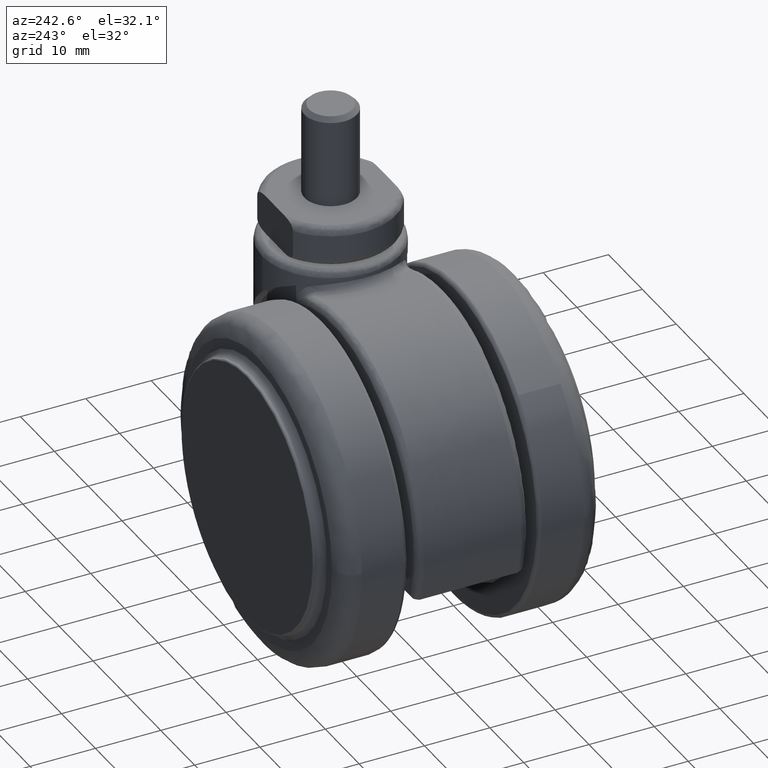
[diagram: clean part render]
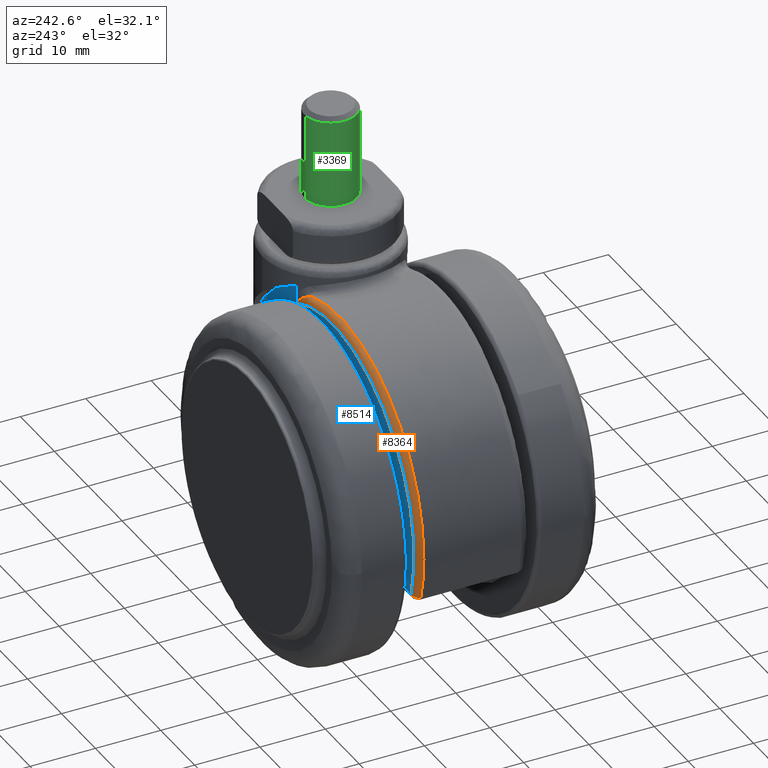
[diagram: same view with three faces highlighted in distinct colors, each labeled with its STEP entity id]
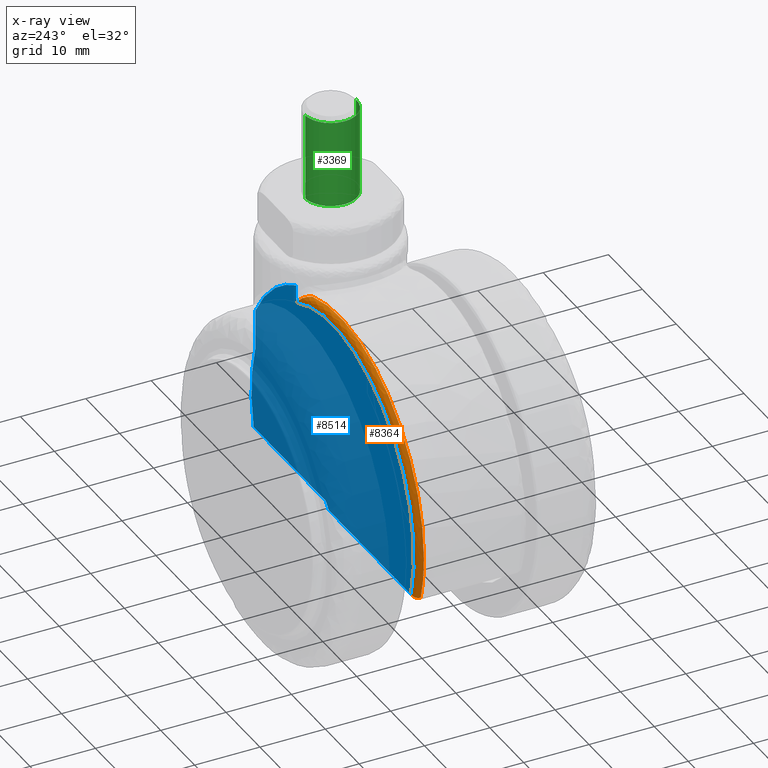
[diagram: x-ray of the same camera — body ghosted, the three highlighted faces saturated]
A machine part, auxiliary view with three faces highlighted in distinct colors.
The next image is the same camera in x-ray (body ghosted, the three faces saturated) — at least one of them is partly hidden behind the body in this view.
Their STEP definitions:

[orange] entity #8364 — the highlighted face is a freeform B-spline surface patch.
#7219=CARTESIAN_POINT('',(7.963655877806359,7.500000000000000,23.697683115863452));
#7220=VERTEX_POINT('',#7219);
#7267=CARTESIAN_POINT('',(-24.065656358641501,7.500000000000000,-6.770833333333330));
#7268=VERTEX_POINT('',#7267);
#7269=CARTESIAN_POINT('',(7.963655877806359,7.500000000000000,23.697683115863452));
#7270=CARTESIAN_POINT('',(6.859242769091625,7.499999999999993,24.068882905168969));
#7271=CARTESIAN_POINT('',(4.872437707987634,7.500000000000003,24.585161753016191));
#7272=CARTESIAN_POINT('',(1.367299601235439,7.499999999999980,25.048626256332479));
#7273=CARTESIAN_POINT('',(-2.354405640508272,7.500000000000038,25.009508996484090));
#7274=CARTESIAN_POINT('',(-6.118109439583619,7.499999999999904,24.324602599033572));
#7275=CARTESIAN_POINT('',(-9.442108607412099,7.499999999999992,23.223760472612579));
#7276=CARTESIAN_POINT('',(-12.024767901229600,7.500000000000158,21.979301664059150));
#7277=CARTESIAN_POINT('',(-14.447992627646750,7.499999999999566,20.455642199232990));
#7278=CARTESIAN_POINT('',(-16.455091405301140,7.500000000000608,18.888313290922980));
#7279=CARTESIAN_POINT('',(-18.302146878638649,7.499999999999987,17.085964446447921));
#7280=CARTESIAN_POINT('',(-20.037281652684410,7.500000000000112,15.035680725385170));
#7281=CARTESIAN_POINT('',(-21.814796271802731,7.499999999999541,12.393459194769489));
#7282=CARTESIAN_POINT('',(-23.235792128757979,7.500000000001567,9.421515627447958));
#7283=CARTESIAN_POINT('',(-24.198545514101578,7.499999999998988,6.463192589803484));
#7284=CARTESIAN_POINT('',(-24.704152926280820,7.500000000000552,4.076285190569061));
#7285=CARTESIAN_POINT('',(-25.008072640344579,7.499999999999718,1.408036718158076));
#7286=CARTESIAN_POINT('',(-25.034931267070849,7.500000000000443,-2.165553450499177));
#7287=CARTESIAN_POINT('',(-24.553653521361991,7.499999999999515,-5.037551449353529));
#7288=CARTESIAN_POINT('',(-24.065656358641501,7.500000000000000,-6.770833333333330));
#7289=B_SPLINE_CURVE_WITH_KNOTS('',3,(#7269,#7270,#7271,#7272,#7273,#7274,#7275,#7276,#7277,#7278,#7279,#7280,#7281,#7282,#7283,#7284,#7285,#7286,#7287,#7288),.UNSPECIFIED.,.F.,.U.,(4,1,1,1,1,1,1,1,1,1,1,1,1,1,1,1,1,4),(0.000000060380067,3.495371502218006,6.143365577067421,10.592041759199381,14.617031205495501,17.582805502857681,21.078185570483441,23.196615124435130,26.162405244347550,28.704452550518582,30.928756215938112,34.212302534804010,38.237300180954918,40.779396035458483,43.533338399942657,45.545835560267733,48.829381716570850,54.231299920687853),.UNSPECIFIED.);
#7290=EDGE_CURVE('',#7220,#7268,#7289,.T.);
#7949=CARTESIAN_POINT('',(10.519259301592101,8.500000000000000,21.571860924497649));
#7950=VERTEX_POINT('',#7949);
#7972=CARTESIAN_POINT('',(7.963655877806359,7.500000000000000,23.697683115863452));
#7973=CARTESIAN_POINT('',(8.086906256512208,7.574496717780426,23.656264568825581));
#7974=CARTESIAN_POINT('',(8.208791802757018,7.642910021772530,23.605681372133130));
#7975=CARTESIAN_POINT('',(8.450701271172521,7.770864844611372,23.491411037727499));
#7976=CARTESIAN_POINT('',(8.570706536315749,7.830360379961364,23.427637698386409));
#7977=CARTESIAN_POINT('',(8.809030799673582,7.942105333175284,23.289051811595499));
#7978=CARTESIAN_POINT('',(8.927564415652485,7.994416425119940,23.214035388209840));
#7979=CARTESIAN_POINT('',(9.159954255707605,8.091601835681145,23.055714736592911));
#7980=CARTESIAN_POINT('',(9.274171022358837,8.136650606389317,22.972219823947761));
#7981=CARTESIAN_POINT('',(9.498376817115380,8.220443839604647,22.796597556960641));
#7982=CARTESIAN_POINT('',(9.608377941127918,8.259191238348720,22.704487390952629));
#7983=CARTESIAN_POINT('',(9.769481788549019,8.312699300023898,22.558959745821511));
#7984=CARTESIAN_POINT('',(9.822578599136262,8.329776013754687,22.509156793952389));
#7985=CARTESIAN_POINT('',(9.926571541227562,8.362123109384484,22.407377202655422));
#7986=CARTESIAN_POINT('',(9.977541636133163,8.377419636549488,22.355342983534971));
#7987=CARTESIAN_POINT('',(10.077013693826011,8.406129440420878,22.248579802454280));
#7988=CARTESIAN_POINT('',(10.125522433692050,8.419546277959581,22.193857831344491));
#7989=CARTESIAN_POINT('',(10.219367141180820,8.444209167654375,22.081013257189401));
#7990=CARTESIAN_POINT('',(10.264727753480280,8.455466721574995,22.022902032924151));
#7991=CARTESIAN_POINT('',(10.350913534925059,8.475175524779735,21.901948637990500));
#7992=CARTESIAN_POINT('',(10.391264996273680,8.483529567917616,21.839853133406098));
#7993=CARTESIAN_POINT('',(10.445392363569290,8.492788830229522,21.742951329182610));
#7994=CARTESIAN_POINT('',(10.462354310086800,8.495323220637980,21.710016188652851));
#7995=CARTESIAN_POINT('',(10.493342726240650,8.498923811404289,21.642424827868680));
#7996=CARTESIAN_POINT('',(10.507388989945881,8.500000000003656,21.607780220787578));
#7997=CARTESIAN_POINT('',(10.519259301597559,8.500000000003832,21.571860924502150));
#7998=B_SPLINE_CURVE_WITH_KNOTS('',3,(#7972,#7973,#7974,#7975,#7976,#7977,#7978,#7979,#7980,#7981,#7982,#7983,#7984,#7985,#7986,#7987,#7988,#7989,#7990,#7991,#7992,#7993,#7994,#7995,#7996,#7997),.UNSPECIFIED.,.F.,.U.,(4,2,2,2,2,2,2,2,2,2,2,2,4),(0.0,0.125000000000001,0.250000000000002,0.375000000000002,0.500000000000003,0.625000000000004,0.687500000000003,0.750000000000002,0.812500000000002,0.875000000000001,0.937500000000000,0.968750000000000,1.0),.UNSPECIFIED.);
#7999=EDGE_CURVE('',#7220,#7950,#7998,.T.);
#8225=CARTESIAN_POINT('',(-23.103030104295851,8.500000000000000,-6.500000000000000));
#8226=VERTEX_POINT('',#8225);
#8293=CARTESIAN_POINT('',(-24.065656358641512,7.500000000000000,-6.770833333333333));
#8294=CARTESIAN_POINT('',(-24.065656358641512,8.500000000000002,-6.770833333333332));
#8295=CARTESIAN_POINT('',(-23.103030104295851,8.500000000000000,-6.500000000000000));
#8303=(BOUNDED_CURVE()B_SPLINE_CURVE(2,(#8293,#8294,#8295),.UNSPECIFIED.,.F.,.U.)CURVE()GEOMETRIC_REPRESENTATION_ITEM()QUASI_UNIFORM_CURVE()RATIONAL_B_SPLINE_CURVE((1.0,0.707106781186548,1.0))REPRESENTATION_ITEM(''));
#8304=EDGE_CURVE('',#7268,#8226,#8303,.T.);
#8310=CARTESIAN_POINT('',(-23.172909828756957,7.430275732217766,-9.375210455294747));
#8311=CARTESIAN_POINT('',(-30.037930730431039,7.430275732217766,7.593209729575003));
#8312=CARTESIAN_POINT('',(-15.934048446099247,7.430275732217767,19.260955872700897));
#8313=CARTESIAN_POINT('',(-1.959630593221735,7.430275732217766,30.821599723683370));
#8314=CARTESIAN_POINT('',(13.366389932106099,7.430275732217767,21.123871359096601));
#8315=CARTESIAN_POINT('',(-23.247230763028124,8.577335706274869,-9.405278944974089));
#8316=CARTESIAN_POINT('',(-30.134269390183107,8.577335706274871,7.617562926708606));
#8317=CARTESIAN_POINT('',(-15.985152661149812,8.577335706274873,19.322730256927713));
#8318=CARTESIAN_POINT('',(-1.965915586241207,8.577335706274871,30.920451792936824));
#8319=CARTESIAN_POINT('',(13.409259066579409,8.577335706274871,21.191620548405737));
#8320=CARTESIAN_POINT('',(-22.183870791062201,8.497592349468413,-8.975068686504720));
#8321=CARTESIAN_POINT('',(-28.755886898926569,8.497592349468413,7.269125231795028));
#8322=CARTESIAN_POINT('',(-15.253970024434889,8.497592349468413,18.438882278914374));
#8323=CARTESIAN_POINT('',(-1.875991931936650,8.497592349468413,29.506108248672525));
#8324=CARTESIAN_POINT('',(12.795901308381440,8.497592349468413,20.222286985110820));
#8332=(BOUNDED_SURFACE()B_SPLINE_SURFACE(2,2,((#8310,#8315,#8320),(#8311,#8316,#8321),(#8312,#8317,#8322),(#8313,#8318,#8323),(#8314,#8319,#8324)),.UNSPECIFIED.,.F.,.F.,.U.)B_SPLINE_SURFACE_WITH_KNOTS((3,2,3),(3,3),(0.0,32.693040188240168,65.146985366796685),(0.0,1.822370444831694),.UNSPECIFIED.)GEOMETRIC_REPRESENTATION_ITEM()RATIONAL_B_SPLINE_SURFACE(((0.887717816215956,0.584162505026285,0.892662383280288),(0.726679145541502,0.478191044784231,0.730726731050935),(0.913811094967896,0.601333181114613,0.918901000972554),(0.728047703344710,0.479091623932235,0.732102911688468),(0.885380979992293,0.582624750486143,0.890312530934592)))REPRESENTATION_ITEM('')SURFACE());
#8333=ORIENTED_EDGE('',*,*,#7290,.F.);
#8334=ORIENTED_EDGE('',*,*,#7999,.T.);
#8335=CARTESIAN_POINT('',(-23.103030104295851,8.500000000000000,-6.500000000000000));
#8336=CARTESIAN_POINT('',(-23.346244557570770,8.499999999999989,-5.635610764137390));
#8337=CARTESIAN_POINT('',(-23.735484791490009,8.500000000000020,-3.879493497493383));
#8338=CARTESIAN_POINT('',(-24.005457262742389,8.499999999999975,-1.339599236770618));
#8339=CARTESIAN_POINT('',(-24.011969827971519,8.500000000000032,1.141504496919915));
#8340=CARTESIAN_POINT('',(-23.790989273043781,8.499999999999909,3.432703993917839));
#8341=CARTESIAN_POINT('',(-23.295305989846231,8.500000000000046,5.973533331593217));
#8342=CARTESIAN_POINT('',(-22.426274491585119,8.500000000000014,8.756552783996602));
#8343=CARTESIAN_POINT('',(-21.138895233915481,8.499999999999954,11.493854406330341));
#8344=CARTESIAN_POINT('',(-19.718133782241448,8.500000000000048,13.744420474461529));
#8345=CARTESIAN_POINT('',(-18.092583601994480,8.499999999999952,15.850409708342051));
#8346=CARTESIAN_POINT('',(-16.033051550238859,8.500000000000073,17.966521359326499));
#8347=CARTESIAN_POINT('',(-13.297168220413701,8.499999999999707,20.078935389592420));
#8348=CARTESIAN_POINT('',(-10.693827732398770,8.500000000000982,21.548279440125182));
#8349=CARTESIAN_POINT('',(-8.207294529475309,8.499999999998352,22.591013063935520));
#8350=CARTESIAN_POINT('',(-5.495271710868497,8.500000000003361,23.438439346925001));
#8351=CARTESIAN_POINT('',(-2.759158713449573,8.499999999998398,23.902836987235609));
#8352=CARTESIAN_POINT('',(0.077343010024141,8.499999999999712,24.035873104368129));
#8353=CARTESIAN_POINT('',(2.664624706985277,8.500000000000618,23.913244976623439));
#8354=CARTESIAN_POINT('',(5.076955345491345,8.499999999999824,23.497009272345998));
#8355=CARTESIAN_POINT('',(7.780173271806509,8.500000000000012,22.756478069076390));
#8356=CARTESIAN_POINT('',(9.389343724878328,8.500000000000007,22.122949486084050));
#8357=CARTESIAN_POINT('',(10.519259301592101,8.500000000000000,21.571860924497649));
#8358=B_SPLINE_CURVE_WITH_KNOTS('',3,(#8335,#8336,#8337,#8338,#8339,#8340,#8341,#8342,#8343,#8344,#8345,#8346,#8347,#8348,#8349,#8350,#8351,#8352,#8353,#8354,#8355,#8356,#8357),.UNSPECIFIED.,.F.,.U.,(4,1,1,1,1,1,1,1,1,1,1,1,1,1,1,1,1,1,1,1,4),(0.000000068685104,2.693863747682102,5.387725951119421,7.650559762373419,10.128935737586479,12.284030205576091,15.408918750199080,18.857071757102080,21.335432372464130,23.382794637648828,26.830952277420561,30.171299023557300,33.727197270955493,35.774526993252842,38.252901265539663,42.239827515535822,44.071656975528967,46.765530281602167,49.998163506862497,51.398975466437079,55.170385657455029),.UNSPECIFIED.);
#8359=EDGE_CURVE('',#8226,#7950,#8358,.T.);
#8360=ORIENTED_EDGE('',*,*,#8359,.F.);
#8361=ORIENTED_EDGE('',*,*,#8304,.F.);
#8362=EDGE_LOOP('',(#8333,#8334,#8360,#8361));
#8363=FACE_OUTER_BOUND('',#8362,.T.);
#8364=ADVANCED_FACE('',(#8363),#8332,.T.);

[blue] entity #8514 — the highlighted face is a freeform B-spline surface patch.
#6799=CARTESIAN_POINT('',(10.835585997030799,8.500000000000000,24.183466999190799));
#6800=VERTEX_POINT('',#6799);
#6824=CARTESIAN_POINT('',(10.835585997031000,8.500000000000000,22.640273696058799));
#6825=VERTEX_POINT('',#6824);
#6826=CARTESIAN_POINT('',(10.835585997030799,8.500000000000000,24.183466999190799));
#6827=CARTESIAN_POINT('',(10.835585997031000,8.500000000000000,22.640273696058799));
#6828=QUASI_UNIFORM_CURVE('',1,(#6826,#6827),.UNSPECIFIED.,.F.,.U.);
#6829=EDGE_CURVE('',#6800,#6825,#6828,.T.);
#7431=CARTESIAN_POINT('',(22.830951894845299,8.500000000000000,7.399164518731801));
#7432=VERTEX_POINT('',#7431);
#7446=CARTESIAN_POINT('',(22.830951894845299,8.500000000000000,13.453536173633299));
#7447=VERTEX_POINT('',#7446);
#7448=CARTESIAN_POINT('',(22.830951894845299,8.500000000000000,13.453536173633299));
#7449=CARTESIAN_POINT('',(22.830951894845299,8.500000000000000,7.399164518731801));
#7450=QUASI_UNIFORM_CURVE('',1,(#7448,#7449),.UNSPECIFIED.,.F.,.U.);
#7451=EDGE_CURVE('',#7447,#7432,#7450,.T.);
#7949=CARTESIAN_POINT('',(10.519259301592101,8.500000000000000,21.571860924497649));
#7950=VERTEX_POINT('',#7949);
#7951=CARTESIAN_POINT('',(10.519259301592101,8.500000000000000,21.571860924497649));
#7952=CARTESIAN_POINT('',(10.526676076427140,8.500000000000000,21.580945536070129));
#7953=CARTESIAN_POINT('',(10.534228568331301,8.500000000000000,21.590400479527460));
#7954=CARTESIAN_POINT('',(10.548736710344169,8.500000000000000,21.609417072790979));
#7955=CARTESIAN_POINT('',(10.555801242226281,8.500000000000000,21.619032015800268));
#7956=CARTESIAN_POINT('',(10.576463655569469,8.500000000000002,21.648175720686279));
#7957=CARTESIAN_POINT('',(10.589531860306019,8.499999999999998,21.668002511289970));
#7958=CARTESIAN_POINT('',(10.626847344307871,8.500000000000000,21.728545824032430));
#7959=CARTESIAN_POINT('',(10.649217735745330,8.499999999999998,21.770318398786099));
#7960=CARTESIAN_POINT('',(10.689723438152360,8.499999999999998,21.856246465234982));
#7961=CARTESIAN_POINT('',(10.707928924108231,8.499999999999998,21.900636460711421));
#7962=CARTESIAN_POINT('',(10.740111076203689,8.500000000000000,21.990312869728200));
#7963=CARTESIAN_POINT('',(10.754086789711220,8.500000000000000,22.035513292402221));
#7964=CARTESIAN_POINT('',(10.790582250077589,8.500000000000000,22.172044638926231));
#7965=CARTESIAN_POINT('',(10.807722496924050,8.500000000000002,22.264296706357769));
#7966=CARTESIAN_POINT('',(10.830241689083870,8.499999999999998,22.450814754668681));
#7967=CARTESIAN_POINT('',(10.835585997031041,8.500000000000002,22.545086666580222));
#7968=CARTESIAN_POINT('',(10.835585997031041,8.500000000000000,22.640273696058799));
#7969=B_SPLINE_CURVE_WITH_KNOTS('',3,(#7951,#7952,#7953,#7954,#7955,#7956,#7957,#7958,#7959,#7960,#7961,#7962,#7963,#7964,#7965,#7966,#7967,#7968),.UNSPECIFIED.,.F.,.U.,(4,2,2,2,2,2,2,2,4),(0.0,0.031250000000005,0.062500000000010,0.125000000000013,0.250000000000011,0.375000000000009,0.500000000000006,0.750000000000003,1.0),.UNSPECIFIED.);
#7970=EDGE_CURVE('',#7950,#6825,#7969,.T.);
#8225=CARTESIAN_POINT('',(-23.103030104295851,8.500000000000000,-6.500000000000000));
#8226=VERTEX_POINT('',#8225);
#8240=CARTESIAN_POINT('',(1.085786437626944,8.500000000000000,-6.500000000000000));
#8241=VERTEX_POINT('',#8240);
#8242=CARTESIAN_POINT('',(1.085786437626944,8.500000000000000,-6.500000000000000));
#8243=CARTESIAN_POINT('',(-23.103030104295851,8.500000000000000,-6.500000000000000));
#8244=QUASI_UNIFORM_CURVE('',1,(#8242,#8243),.UNSPECIFIED.,.F.,.U.);
#8245=EDGE_CURVE('',#8241,#8226,#8244,.T.);
#8335=CARTESIAN_POINT('',(-23.103030104295851,8.500000000000000,-6.500000000000000));
#8336=CARTESIAN_POINT('',(-23.346244557570770,8.499999999999989,-5.635610764137390));
#8337=CARTESIAN_POINT('',(-23.735484791490009,8.500000000000020,-3.879493497493383));
#8338=CARTESIAN_POINT('',(-24.005457262742389,8.499999999999975,-1.339599236770618));
#8339=CARTESIAN_POINT('',(-24.011969827971519,8.500000000000032,1.141504496919915));
#8340=CARTESIAN_POINT('',(-23.790989273043781,8.499999999999909,3.432703993917839));
#8341=CARTESIAN_POINT('',(-23.295305989846231,8.500000000000046,5.973533331593217));
#8342=CARTESIAN_POINT('',(-22.426274491585119,8.500000000000014,8.756552783996602));
#8343=CARTESIAN_POINT('',(-21.138895233915481,8.499999999999954,11.493854406330341));
#8344=CARTESIAN_POINT('',(-19.718133782241448,8.500000000000048,13.744420474461529));
#8345=CARTESIAN_POINT('',(-18.092583601994480,8.499999999999952,15.850409708342051));
#8346=CARTESIAN_POINT('',(-16.033051550238859,8.500000000000073,17.966521359326499));
#8347=CARTESIAN_POINT('',(-13.297168220413701,8.499999999999707,20.078935389592420));
#8348=CARTESIAN_POINT('',(-10.693827732398770,8.500000000000982,21.548279440125182));
#8349=CARTESIAN_POINT('',(-8.207294529475309,8.499999999998352,22.591013063935520));
#8350=CARTESIAN_POINT('',(-5.495271710868497,8.500000000003361,23.438439346925001));
#8351=CARTESIAN_POINT('',(-2.759158713449573,8.499999999998398,23.902836987235609));
#8352=CARTESIAN_POINT('',(0.077343010024141,8.499999999999712,24.035873104368129));
#8353=CARTESIAN_POINT('',(2.664624706985277,8.500000000000618,23.913244976623439));
#8354=CARTESIAN_POINT('',(5.076955345491345,8.499999999999824,23.497009272345998));
#8355=CARTESIAN_POINT('',(7.780173271806509,8.500000000000012,22.756478069076390));
#8356=CARTESIAN_POINT('',(9.389343724878328,8.500000000000007,22.122949486084050));
#8357=CARTESIAN_POINT('',(10.519259301592101,8.500000000000000,21.571860924497649));
#8358=B_SPLINE_CURVE_WITH_KNOTS('',3,(#8335,#8336,#8337,#8338,#8339,#8340,#8341,#8342,#8343,#8344,#8345,#8346,#8347,#8348,#8349,#8350,#8351,#8352,#8353,#8354,#8355,#8356,#8357),.UNSPECIFIED.,.F.,.U.,(4,1,1,1,1,1,1,1,1,1,1,1,1,1,1,1,1,1,1,1,4),(0.000000068685104,2.693863747682102,5.387725951119421,7.650559762373419,10.128935737586479,12.284030205576091,15.408918750199080,18.857071757102080,21.335432372464130,23.382794637648828,26.830952277420561,30.171299023557300,33.727197270955493,35.774526993252842,38.252901265539663,42.239827515535822,44.071656975528967,46.765530281602167,49.998163506862497,51.398975466437079,55.170385657455029),.UNSPECIFIED.);
#8359=EDGE_CURVE('',#8226,#7950,#8358,.T.);
#8382=CARTESIAN_POINT('',(22.830951894845299,8.500000000000000,13.453536173633310));
#8383=CARTESIAN_POINT('',(18.543147993956090,8.500000000000000,20.730035328375156));
#8384=CARTESIAN_POINT('',(10.835585997030799,8.500000000000000,24.183466999190799));
#8392=(BOUNDED_CURVE()B_SPLINE_CURVE(2,(#8382,#8383,#8384),.UNSPECIFIED.,.F.,.U.)CURVE()GEOMETRIC_REPRESENTATION_ITEM()QUASI_UNIFORM_CURVE()RATIONAL_B_SPLINE_CURVE((1.0,0.952779707509432,1.0))REPRESENTATION_ITEM(''));
#8393=EDGE_CURVE('',#7447,#6800,#8392,.T.);
#8474=CARTESIAN_POINT('',(-26.384489385240961,8.500000000000000,25.716106116329868));
#8475=CARTESIAN_POINT('',(26.396688943236921,8.500000000000000,25.716106116329868));
#8476=CARTESIAN_POINT('',(-26.384489385240961,8.500000000000000,-8.032639940133787));
#8477=CARTESIAN_POINT('',(26.396688943236921,8.500000000000000,-8.032639940133787));
#8478=B_SPLINE_SURFACE_WITH_KNOTS('',1,1,((#8474,#8476),(#8475,#8477)),.UNSPECIFIED.,.F.,.F.,.U.,(2,2),(2,2),(0.0,52.781178328477878),(0.0,33.748746056463652),.UNSPECIFIED.);
#8479=ORIENTED_EDGE('',*,*,#8393,.F.);
#8480=ORIENTED_EDGE('',*,*,#7451,.T.);
#8481=CARTESIAN_POINT('',(23.361292772447349,8.500000000000000,-5.500000000000000));
#8482=VERTEX_POINT('',#8481);
#8483=CARTESIAN_POINT('',(22.830951894845299,8.500000000000000,7.399164518731801));
#8484=CARTESIAN_POINT('',(24.897165414359868,8.500000000000000,1.023630990711071));
#8485=CARTESIAN_POINT('',(23.361292772447339,8.500000000000000,-5.499999999999995));
#8493=(BOUNDED_CURVE()B_SPLINE_CURVE(2,(#8483,#8484,#8485),.UNSPECIFIED.,.F.,.U.)CURVE()GEOMETRIC_REPRESENTATION_ITEM()QUASI_UNIFORM_CURVE()RATIONAL_B_SPLINE_CURVE((1.0,0.963151451001386,1.0))REPRESENTATION_ITEM(''));
#8494=EDGE_CURVE('',#7432,#8482,#8493,.T.);
#8495=ORIENTED_EDGE('',*,*,#8494,.T.);
#8496=CARTESIAN_POINT('',(2.085786437627060,8.500000000000000,-5.500000000000000));
#8497=VERTEX_POINT('',#8496);
#8498=CARTESIAN_POINT('',(23.361292772447349,8.500000000000000,-5.500000000000000));
#8499=CARTESIAN_POINT('',(2.085786437627060,8.500000000000000,-5.500000000000000));
#8500=QUASI_UNIFORM_CURVE('',1,(#8498,#8499),.UNSPECIFIED.,.F.,.U.);
#8501=EDGE_CURVE('',#8482,#8497,#8500,.T.);
#8502=ORIENTED_EDGE('',*,*,#8501,.T.);
#8503=CARTESIAN_POINT('',(2.085786437627060,8.500000000000000,-5.500000000000000));
#8504=CARTESIAN_POINT('',(1.085786437626944,8.500000000000000,-6.500000000000000));
#8505=QUASI_UNIFORM_CURVE('',1,(#8503,#8504),.UNSPECIFIED.,.F.,.U.);
#8506=EDGE_CURVE('',#8497,#8241,#8505,.T.);
#8507=ORIENTED_EDGE('',*,*,#8506,.T.);
#8508=ORIENTED_EDGE('',*,*,#8245,.T.);
#8509=ORIENTED_EDGE('',*,*,#8359,.T.);
#8510=ORIENTED_EDGE('',*,*,#7970,.T.);
#8511=ORIENTED_EDGE('',*,*,#6829,.F.);
#8512=EDGE_LOOP('',(#8479,#8480,#8495,#8502,#8507,#8508,#8509,#8510,#8511));
#8513=FACE_OUTER_BOUND('',#8512,.T.);
#8514=ADVANCED_FACE('',(#8513),#8478,.T.);

[green] entity #3369 — the highlighted face is a freeform B-spline surface patch.
#3144=CARTESIAN_POINT('',(16.755805841837521,3.992539193685998,46.823500000000003));
#3145=VERTEX_POINT('',#3144);
#3153=CARTESIAN_POINT('',(17.244194158162479,-3.992539193685998,46.823499999999989));
#3154=VERTEX_POINT('',#3153);
#3212=CARTESIAN_POINT('',(13.000000000000060,0.0,46.823500000000003));
#3213=VERTEX_POINT('',#3212);
#3214=CARTESIAN_POINT('',(13.000000000000060,0.0,46.823500000000003));
#3215=CARTESIAN_POINT('',(13.000000000011589,3.762824267579889,46.823499999999996));
#3216=CARTESIAN_POINT('',(16.755805841837525,3.992539193685998,46.823499999999996));
#3224=(BOUNDED_CURVE()B_SPLINE_CURVE(2,(#3214,#3215,#3216),.UNSPECIFIED.,.F.,.U.)B_SPLINE_CURVE_WITH_KNOTS((3,3),(0.0,0.239332962239975),.UNSPECIFIED.)CURVE()GEOMETRIC_REPRESENTATION_ITEM()RATIONAL_B_SPLINE_CURVE((1.0,0.719603993285500,0.976072041668931))REPRESENTATION_ITEM(''));
#3225=EDGE_CURVE('',#3213,#3145,#3224,.T.);
#3227=CARTESIAN_POINT('',(17.244194158162475,-3.992539193685998,46.823499999999989));
#3228=CARTESIAN_POINT('',(17.122211053194750,-4.000000000001330,46.823499999999989));
#3229=CARTESIAN_POINT('',(16.999999999977629,-4.000000000001307,46.823499999999989));
#3230=CARTESIAN_POINT('',(12.999999999989216,-4.000000000000604,46.823499999999996));
#3231=CARTESIAN_POINT('',(13.000000000000060,0.0,46.823500000000003));
#3239=(BOUNDED_CURVE()B_SPLINE_CURVE(2,(#3227,#3228,#3229,#3230,#3231),.UNSPECIFIED.,.F.,.U.)B_SPLINE_CURVE_WITH_KNOTS((3,2,3),(0.739332962239976,0.750000000000000,1.0),.UNSPECIFIED.)CURVE()GEOMETRIC_REPRESENTATION_ITEM()RATIONAL_B_SPLINE_CURVE((0.976072041668931,0.987502787901047,1.0,0.707106781186547,1.0))REPRESENTATION_ITEM(''));
#3240=EDGE_CURVE('',#3154,#3213,#3239,.T.);
#3268=CARTESIAN_POINT('',(17.244194158185529,-3.992539193684587,33.500000000000000));
#3269=VERTEX_POINT('',#3268);
#3270=CARTESIAN_POINT('',(17.244194158162479,-3.992539193685998,46.823499999999989));
#3271=CARTESIAN_POINT('',(17.244194158185529,-3.992539193684587,33.500000000000000));
#3272=QUASI_UNIFORM_CURVE('',1,(#3270,#3271),.UNSPECIFIED.,.F.,.U.);
#3273=EDGE_CURVE('',#3154,#3269,#3272,.T.);
#3290=CARTESIAN_POINT('',(16.755805841814471,3.992539193684587,33.500000000000000));
#3291=VERTEX_POINT('',#3290);
#3307=CARTESIAN_POINT('',(16.755805841837521,3.992539193685998,46.823500000000003));
#3308=CARTESIAN_POINT('',(16.755805841814471,3.992539193684587,33.500000000000000));
#3309=QUASI_UNIFORM_CURVE('',1,(#3307,#3308),.UNSPECIFIED.,.F.,.U.);
#3310=EDGE_CURVE('',#3145,#3291,#3309,.T.);
#3315=CARTESIAN_POINT('',(17.244194158139429,-3.992539193687407,47.156587500000001));
#3316=CARTESIAN_POINT('',(13.251654964452021,-4.236733351826831,47.156587500000001));
#3317=CARTESIAN_POINT('',(13.007460806312590,-0.244194158139424,47.156587500000001));
#3318=CARTESIAN_POINT('',(12.763266648173166,3.748345035547982,47.156587500000001));
#3319=CARTESIAN_POINT('',(16.755805841860582,3.992539193687407,47.156587500000001));
#3320=CARTESIAN_POINT('',(17.244194158139429,-3.992539193687407,33.158585312500001));
#3321=CARTESIAN_POINT('',(13.251654964452021,-4.236733351826831,33.158585312500009));
#3322=CARTESIAN_POINT('',(13.007460806312590,-0.244194158139424,33.158585312500001));
#3323=CARTESIAN_POINT('',(12.763266648173166,3.748345035547982,33.158585312500009));
#3324=CARTESIAN_POINT('',(16.755805841860582,3.992539193687407,33.158585312500001));
#3332=(BOUNDED_SURFACE()B_SPLINE_SURFACE(2,1,((#3315,#3320),(#3316,#3321),(#3317,#3322),(#3318,#3323),(#3319,#3324)),.UNSPECIFIED.,.F.,.F.,.U.)B_SPLINE_SURFACE_WITH_KNOTS((3,2,3),(2,2),(0.0,6.627416997969418,13.254833995938840),(0.0,13.998002187499999),.UNSPECIFIED.)GEOMETRIC_REPRESENTATION_ITEM()RATIONAL_B_SPLINE_SURFACE(((1.0,1.0),(0.707106781186548,0.707106781186548),(1.0,1.0),(0.707106781186548,0.707106781186548),(1.0,1.0)))REPRESENTATION_ITEM('')SURFACE());
#3333=ORIENTED_EDGE('',*,*,#3225,.T.);
#3334=ORIENTED_EDGE('',*,*,#3310,.T.);
#3335=CARTESIAN_POINT('',(13.000000000000060,0.0,33.500000000000000));
#3336=VERTEX_POINT('',#3335);
#3337=CARTESIAN_POINT('',(13.000000000000060,0.0,33.500000000000000));
#3338=CARTESIAN_POINT('',(13.000000000000062,3.762824267579188,33.499999999999993));
#3339=CARTESIAN_POINT('',(16.755805841814468,3.992539193684589,33.499999999999993));
#3347=(BOUNDED_CURVE()B_SPLINE_CURVE(2,(#3337,#3338,#3339),.UNSPECIFIED.,.F.,.U.)B_SPLINE_CURVE_WITH_KNOTS((3,3),(0.0,0.239332962239976),.UNSPECIFIED.)CURVE()GEOMETRIC_REPRESENTATION_ITEM()RATIONAL_B_SPLINE_CURVE((1.0,0.719603993285500,0.976072041668931))REPRESENTATION_ITEM(''));
#3348=EDGE_CURVE('',#3336,#3291,#3347,.T.);
#3349=ORIENTED_EDGE('',*,*,#3348,.F.);
#3350=CARTESIAN_POINT('',(17.244194158185532,-3.992539193684589,33.499999999999993));
#3351=CARTESIAN_POINT('',(17.122211053217470,-3.999999999999941,33.500000000000007));
#3352=CARTESIAN_POINT('',(17.0,-3.999999999999940,33.500000000000000));
#3353=CARTESIAN_POINT('',(13.000000000000060,-3.999999999999941,33.500000000000000));
#3354=CARTESIAN_POINT('',(13.000000000000060,0.0,33.500000000000000));
#3362=(BOUNDED_CURVE()B_SPLINE_CURVE(2,(#3350,#3351,#3352,#3353,#3354),.UNSPECIFIED.,.F.,.U.)B_SPLINE_CURVE_WITH_KNOTS((3,2,3),(0.739332962239976,0.750000000000000,1.0),.UNSPECIFIED.)CURVE()GEOMETRIC_REPRESENTATION_ITEM()RATIONAL_B_SPLINE_CURVE((0.976072041668931,0.987502787901047,1.0,0.707106781186547,1.0))REPRESENTATION_ITEM(''));
#3363=EDGE_CURVE('',#3269,#3336,#3362,.T.);
#3364=ORIENTED_EDGE('',*,*,#3363,.F.);
#3365=ORIENTED_EDGE('',*,*,#3273,.F.);
#3366=ORIENTED_EDGE('',*,*,#3240,.T.);
#3367=EDGE_LOOP('',(#3333,#3334,#3349,#3364,#3365,#3366));
#3368=FACE_OUTER_BOUND('',#3367,.T.);
#3369=ADVANCED_FACE('',(#3368),#3332,.T.);